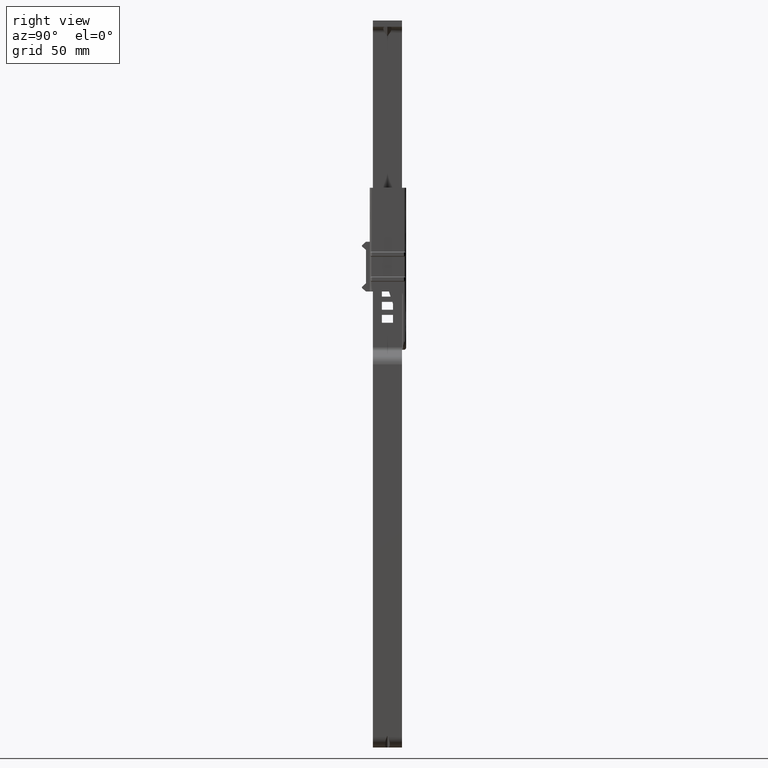
[diagram: clean part render]
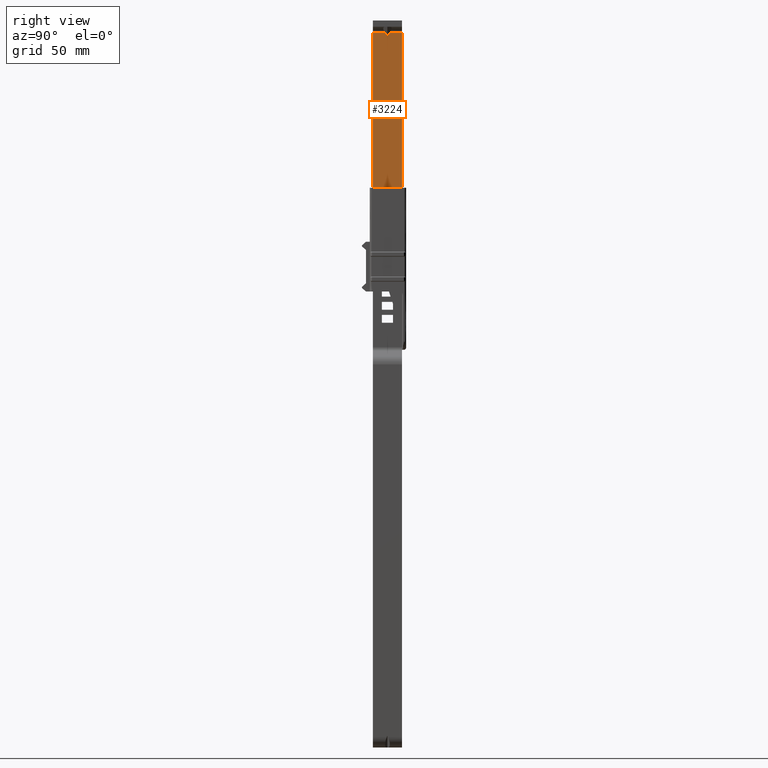
[diagram: same view with one face highlighted and labeled with its STEP entity id]
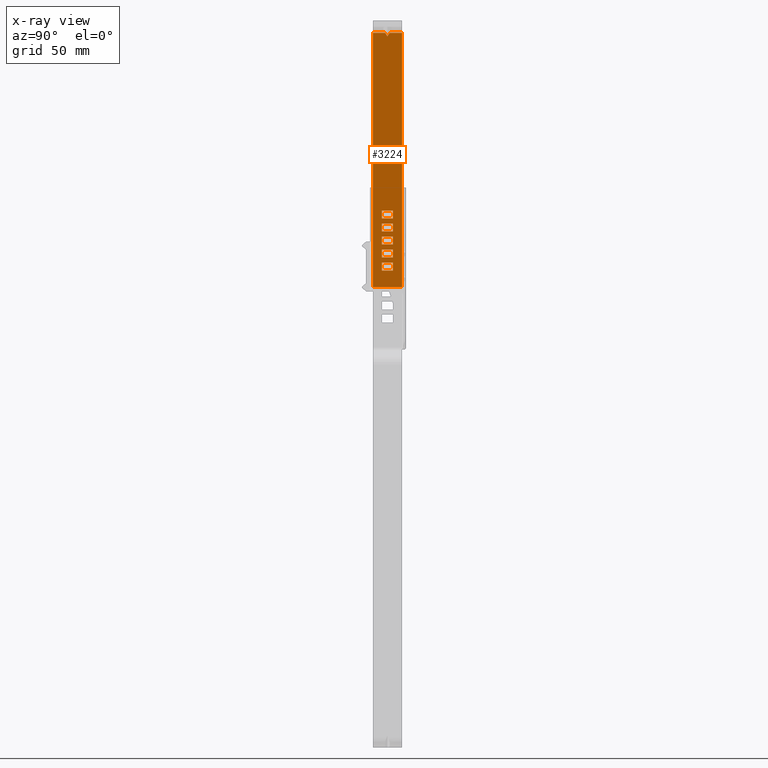
[diagram: x-ray of the same camera — body ghosted, the highlighted face saturated]
A machine part, right view. The second image highlights one B-rep face of the part: STEP entity #3224.
The next image is the same camera in x-ray: the body ghosted, the highlighted face saturated — about 0% of this face is hidden behind the body in this view.
In plain terms, the highlighted face is a freeform B-spline surface patch.
Its self-contained STEP definition (entity closure, byte-faithful):
#1826=CARTESIAN_POINT('',(-8.900000041257570,2.700000000000000,23.020002576783401));
#1827=VERTEX_POINT('',#1826);
#1828=CARTESIAN_POINT('',(-8.900000041257499,-2.699999999999925,23.020002576783401));
#1829=VERTEX_POINT('',#1828);
#1830=CARTESIAN_POINT('',(-8.900000041257570,2.700000000000000,23.020002576783401));
#1831=CARTESIAN_POINT('',(-8.900000041257499,-2.699999999999925,23.020002576783401));
#1832=QUASI_UNIFORM_CURVE('',1,(#1830,#1831),.UNSPECIFIED.,.F.,.U.);
#1833=EDGE_CURVE('',#1827,#1829,#1832,.T.);
#1862=CARTESIAN_POINT('',(-8.900000041257570,2.700000000000000,26.820002576783398));
#1863=VERTEX_POINT('',#1862);
#1864=CARTESIAN_POINT('',(-8.900000041257570,2.700000000000000,26.820002576783398));
#1865=CARTESIAN_POINT('',(-8.900000041257570,2.700000000000000,23.020002576783401));
#1866=QUASI_UNIFORM_CURVE('',1,(#1864,#1865),.UNSPECIFIED.,.F.,.U.);
#1867=EDGE_CURVE('',#1863,#1827,#1866,.T.);
#1890=CARTESIAN_POINT('',(-8.900000041257570,-2.700000000000000,26.820002576783398));
#1891=VERTEX_POINT('',#1890);
#1892=CARTESIAN_POINT('',(-8.900000041257570,-2.700000000000000,26.820002576783398));
#1893=CARTESIAN_POINT('',(-8.900000041257570,2.700000000000000,26.820002576783398));
#1894=QUASI_UNIFORM_CURVE('',1,(#1892,#1893),.UNSPECIFIED.,.F.,.U.);
#1895=EDGE_CURVE('',#1891,#1863,#1894,.T.);
#1918=CARTESIAN_POINT('',(-8.900000041257499,-2.699999999999925,23.020002576783401));
#1919=CARTESIAN_POINT('',(-8.900000041257570,-2.700000000000000,26.820002576783398));
#1920=QUASI_UNIFORM_CURVE('',1,(#1918,#1919),.UNSPECIFIED.,.F.,.U.);
#1921=EDGE_CURVE('',#1829,#1891,#1920,.T.);
#1938=CARTESIAN_POINT('',(-8.900000041257570,2.700000000000000,1.700002576783400));
#1939=VERTEX_POINT('',#1938);
#1940=CARTESIAN_POINT('',(-8.900000041257499,2.700000000000035,-2.099997423216601));
#1941=VERTEX_POINT('',#1940);
#1942=CARTESIAN_POINT('',(-8.900000041257570,2.700000000000000,1.700002576783400));
#1943=CARTESIAN_POINT('',(-8.900000041257499,2.700000000000035,-2.099997423216601));
#1944=QUASI_UNIFORM_CURVE('',1,(#1942,#1943),.UNSPECIFIED.,.F.,.U.);
#1945=EDGE_CURVE('',#1939,#1941,#1944,.T.);
#1974=CARTESIAN_POINT('',(-8.900000041257570,-2.700000000000000,1.700002576783400));
#1975=VERTEX_POINT('',#1974);
#1976=CARTESIAN_POINT('',(-8.900000041257570,-2.700000000000000,1.700002576783400));
#1977=CARTESIAN_POINT('',(-8.900000041257570,2.700000000000000,1.700002576783400));
#1978=QUASI_UNIFORM_CURVE('',1,(#1976,#1977),.UNSPECIFIED.,.F.,.U.);
#1979=EDGE_CURVE('',#1975,#1939,#1978,.T.);
#2002=CARTESIAN_POINT('',(-8.900000041257570,-2.700000000000000,-2.099997423216601));
#2003=VERTEX_POINT('',#2002);
#2004=CARTESIAN_POINT('',(-8.900000041257570,-2.700000000000000,-2.099997423216601));
#2005=CARTESIAN_POINT('',(-8.900000041257570,-2.700000000000000,1.700002576783400));
#2006=QUASI_UNIFORM_CURVE('',1,(#2004,#2005),.UNSPECIFIED.,.F.,.U.);
#2007=EDGE_CURVE('',#2003,#1975,#2006,.T.);
#2030=CARTESIAN_POINT('',(-8.900000041257499,2.700000000000035,-2.099997423216601));
#2031=CARTESIAN_POINT('',(-8.900000041257570,-2.700000000000000,-2.099997423216601));
#2032=QUASI_UNIFORM_CURVE('',1,(#2030,#2031),.UNSPECIFIED.,.F.,.U.);
#2033=EDGE_CURVE('',#1941,#2003,#2032,.T.);
#2050=CARTESIAN_POINT('',(-8.900000041257499,-2.699999999999925,4.180002576783404));
#2051=VERTEX_POINT('',#2050);
#2052=CARTESIAN_POINT('',(-8.900000041257570,2.700000000000000,4.180002576783400));
#2053=VERTEX_POINT('',#2052);
#2054=CARTESIAN_POINT('',(-8.900000041257499,-2.699999999999925,4.180002576783404));
#2055=CARTESIAN_POINT('',(-8.900000041257570,2.700000000000000,4.180002576783400));
#2056=QUASI_UNIFORM_CURVE('',1,(#2054,#2055),.UNSPECIFIED.,.F.,.U.);
#2057=EDGE_CURVE('',#2051,#2053,#2056,.T.);
#2086=CARTESIAN_POINT('',(-8.900000041257570,-2.700000000000000,7.980002576783400));
#2087=VERTEX_POINT('',#2086);
#2088=CARTESIAN_POINT('',(-8.900000041257570,-2.700000000000000,7.980002576783400));
#2089=CARTESIAN_POINT('',(-8.900000041257499,-2.699999999999925,4.180002576783404));
#2090=QUASI_UNIFORM_CURVE('',1,(#2088,#2089),.UNSPECIFIED.,.F.,.U.);
#2091=EDGE_CURVE('',#2087,#2051,#2090,.T.);
#2114=CARTESIAN_POINT('',(-8.900000041257570,2.700000000000000,7.980002576783400));
#2115=VERTEX_POINT('',#2114);
#2116=CARTESIAN_POINT('',(-8.900000041257570,2.700000000000000,7.980002576783400));
#2117=CARTESIAN_POINT('',(-8.900000041257570,-2.700000000000000,7.980002576783400));
#2118=QUASI_UNIFORM_CURVE('',1,(#2116,#2117),.UNSPECIFIED.,.F.,.U.);
#2119=EDGE_CURVE('',#2115,#2087,#2118,.T.);
#2142=CARTESIAN_POINT('',(-8.900000041257570,2.700000000000000,4.180002576783400));
#2143=CARTESIAN_POINT('',(-8.900000041257570,2.700000000000000,7.980002576783400));
#2144=QUASI_UNIFORM_CURVE('',1,(#2142,#2143),.UNSPECIFIED.,.F.,.U.);
#2145=EDGE_CURVE('',#2053,#2115,#2144,.T.);
#2162=CARTESIAN_POINT('',(-8.900000041257499,-2.699999999999925,10.460002576783401));
#2163=VERTEX_POINT('',#2162);
#2164=CARTESIAN_POINT('',(-8.900000041257570,2.700000000000000,10.460002576783401));
#2165=VERTEX_POINT('',#2164);
#2166=CARTESIAN_POINT('',(-8.900000041257499,-2.699999999999925,10.460002576783401));
#2167=CARTESIAN_POINT('',(-8.900000041257570,2.700000000000000,10.460002576783401));
#2168=QUASI_UNIFORM_CURVE('',1,(#2166,#2167),.UNSPECIFIED.,.F.,.U.);
#2169=EDGE_CURVE('',#2163,#2165,#2168,.T.);
#2198=CARTESIAN_POINT('',(-8.900000041257570,-2.700000000000000,14.260002576783400));
#2199=VERTEX_POINT('',#2198);
#2200=CARTESIAN_POINT('',(-8.900000041257570,-2.700000000000000,14.260002576783400));
#2201=CARTESIAN_POINT('',(-8.900000041257499,-2.699999999999925,10.460002576783401));
#2202=QUASI_UNIFORM_CURVE('',1,(#2200,#2201),.UNSPECIFIED.,.F.,.U.);
#2203=EDGE_CURVE('',#2199,#2163,#2202,.T.);
#2226=CARTESIAN_POINT('',(-8.900000041257570,2.700000000000000,14.260002576783400));
#2227=VERTEX_POINT('',#2226);
#2228=CARTESIAN_POINT('',(-8.900000041257570,2.700000000000000,14.260002576783400));
#2229=CARTESIAN_POINT('',(-8.900000041257570,-2.700000000000000,14.260002576783400));
#2230=QUASI_UNIFORM_CURVE('',1,(#2228,#2229),.UNSPECIFIED.,.F.,.U.);
#2231=EDGE_CURVE('',#2227,#2199,#2230,.T.);
#2254=CARTESIAN_POINT('',(-8.900000041257570,2.700000000000000,10.460002576783401));
#2255=CARTESIAN_POINT('',(-8.900000041257570,2.700000000000000,14.260002576783400));
#2256=QUASI_UNIFORM_CURVE('',1,(#2254,#2255),.UNSPECIFIED.,.F.,.U.);
#2257=EDGE_CURVE('',#2165,#2227,#2256,.T.);
#2274=CARTESIAN_POINT('',(-8.900000041257499,-2.699999999999925,16.740002576783400));
#2275=VERTEX_POINT('',#2274);
#2276=CARTESIAN_POINT('',(-8.900000041257570,2.700000000000000,16.740002576783400));
#2277=VERTEX_POINT('',#2276);
#2278=CARTESIAN_POINT('',(-8.900000041257499,-2.699999999999925,16.740002576783400));
#2279=CARTESIAN_POINT('',(-8.900000041257570,2.700000000000000,16.740002576783400));
#2280=QUASI_UNIFORM_CURVE('',1,(#2278,#2279),.UNSPECIFIED.,.F.,.U.);
#2281=EDGE_CURVE('',#2275,#2277,#2280,.T.);
#2310=CARTESIAN_POINT('',(-8.900000041257570,-2.700000000000000,20.540002576783401));
#2311=VERTEX_POINT('',#2310);
#2312=CARTESIAN_POINT('',(-8.900000041257570,-2.700000000000000,20.540002576783401));
#2313=CARTESIAN_POINT('',(-8.900000041257499,-2.699999999999925,16.740002576783400));
#2314=QUASI_UNIFORM_CURVE('',1,(#2312,#2313),.UNSPECIFIED.,.F.,.U.);
#2315=EDGE_CURVE('',#2311,#2275,#2314,.T.);
#2338=CARTESIAN_POINT('',(-8.900000041257570,2.700000000000000,20.540002576783401));
#2339=VERTEX_POINT('',#2338);
#2340=CARTESIAN_POINT('',(-8.900000041257570,2.700000000000000,20.540002576783401));
#2341=CARTESIAN_POINT('',(-8.900000041257570,-2.700000000000000,20.540002576783401));
#2342=QUASI_UNIFORM_CURVE('',1,(#2340,#2341),.UNSPECIFIED.,.F.,.U.);
#2343=EDGE_CURVE('',#2339,#2311,#2342,.T.);
#2366=CARTESIAN_POINT('',(-8.900000041257570,2.700000000000000,16.740002576783400));
#2367=CARTESIAN_POINT('',(-8.900000041257570,2.700000000000000,20.540002576783401));
#2368=QUASI_UNIFORM_CURVE('',1,(#2366,#2367),.UNSPECIFIED.,.F.,.U.);
#2369=EDGE_CURVE('',#2277,#2339,#2368,.T.);
#2472=CARTESIAN_POINT('',(-8.900000041257560,1.121320396819670,112.300008385721600));
#2473=VERTEX_POINT('',#2472);
#2496=CARTESIAN_POINT('',(-8.900000041257538,1.574754E-014,110.714221872773610));
#2497=VERTEX_POINT('',#2496);
#2503=CARTESIAN_POINT('',(-8.900000041257538,1.574754E-014,110.714221872773610));
#2504=CARTESIAN_POINT('',(-8.900000041257560,1.121320396819670,112.300008385721600));
#2505=QUASI_UNIFORM_CURVE('',1,(#2503,#2504),.UNSPECIFIED.,.F.,.U.);
#2506=EDGE_CURVE('',#2497,#2473,#2505,.T.);
#2523=CARTESIAN_POINT('',(-8.900000041257560,-1.121320396819670,112.300008385721600));
#2524=VERTEX_POINT('',#2523);
#2540=CARTESIAN_POINT('',(-8.900000041257538,1.574754E-014,110.714221872773610));
#2541=CARTESIAN_POINT('',(-8.900000041257560,-1.121320396819670,112.300008385721600));
#2542=QUASI_UNIFORM_CURVE('',1,(#2540,#2541),.UNSPECIFIED.,.F.,.U.);
#2543=EDGE_CURVE('',#2497,#2524,#2542,.T.);
#2809=CARTESIAN_POINT('',(-8.900000041257560,7.000000332482160,112.300008385721600));
#2810=VERTEX_POINT('',#2809);
#2824=CARTESIAN_POINT('',(-8.900000041257499,7.000000332482160,-10.199997423216599));
#2825=VERTEX_POINT('',#2824);
#2826=CARTESIAN_POINT('',(-8.900000041257499,7.000000332482160,-10.199997423216599));
#2827=CARTESIAN_POINT('',(-8.900000041257560,7.000000332482160,112.300008385721600));
#2828=QUASI_UNIFORM_CURVE('',1,(#2826,#2827),.UNSPECIFIED.,.F.,.U.);
#2829=EDGE_CURVE('',#2825,#2810,#2828,.T.);
#2868=CARTESIAN_POINT('',(-8.900000041257499,-7.000000332482160,-10.199997423216599));
#2869=VERTEX_POINT('',#2868);
#2881=CARTESIAN_POINT('',(-8.900000041257499,7.000000332482160,-10.199997423216599));
#2882=CARTESIAN_POINT('',(-8.900000041257499,-7.000000332482160,-10.199997423216599));
#2883=QUASI_UNIFORM_CURVE('',1,(#2881,#2882),.UNSPECIFIED.,.F.,.U.);
#2884=EDGE_CURVE('',#2825,#2869,#2883,.T.);
#2954=CARTESIAN_POINT('',(-8.900000041257560,7.000000332482160,112.300008385721600));
#2955=CARTESIAN_POINT('',(-8.900000041257560,1.121320396819670,112.300008385721600));
#2956=QUASI_UNIFORM_CURVE('',1,(#2954,#2955),.UNSPECIFIED.,.F.,.U.);
#2957=EDGE_CURVE('',#2810,#2473,#2956,.T.);
#2988=CARTESIAN_POINT('',(-8.900000041257560,-7.000000332482160,112.300008385721600));
#2989=VERTEX_POINT('',#2988);
#2990=CARTESIAN_POINT('',(-8.900000041257499,-7.000000332482160,-10.199997423216599));
#2991=CARTESIAN_POINT('',(-8.900000041257560,-7.000000332482160,112.300008385721600));
#2992=QUASI_UNIFORM_CURVE('',1,(#2990,#2991),.UNSPECIFIED.,.F.,.U.);
#2993=EDGE_CURVE('',#2869,#2989,#2992,.T.);
#3079=CARTESIAN_POINT('',(-8.900000041257560,-1.121320396819670,112.300008385721600));
#3080=CARTESIAN_POINT('',(-8.900000041257560,-7.000000332482160,112.300008385721600));
#3081=QUASI_UNIFORM_CURVE('',1,(#3079,#3080),.UNSPECIFIED.,.F.,.U.);
#3082=EDGE_CURVE('',#2524,#2989,#3081,.T.);
#3180=CARTESIAN_POINT('',(-8.900000041257499,-7.699300469984402,118.418885738334100));
#3181=CARTESIAN_POINT('',(-8.900000041257499,-7.699300469984402,-16.318875871064488));
#3182=CARTESIAN_POINT('',(-8.900000041257499,7.699300720323921,118.418885738334100));
#3183=CARTESIAN_POINT('',(-8.900000041257499,7.699300720323921,-16.318875871064488));
#3184=B_SPLINE_SURFACE_WITH_KNOTS('',1,1,((#3180,#3182),(#3181,#3183)),.UNSPECIFIED.,.F.,.F.,.U.,(2,2),(2,2),(0.0,134.737761609398600),(0.0,15.398601190308320),.UNSPECIFIED.);
#3185=ORIENTED_EDGE('',*,*,#2506,.F.);
#3186=ORIENTED_EDGE('',*,*,#2543,.T.);
#3187=ORIENTED_EDGE('',*,*,#3082,.T.);
#3188=ORIENTED_EDGE('',*,*,#2993,.F.);
#3189=ORIENTED_EDGE('',*,*,#2884,.F.);
#3190=ORIENTED_EDGE('',*,*,#2829,.T.);
#3191=ORIENTED_EDGE('',*,*,#2957,.T.);
#3192=EDGE_LOOP('',(#3185,#3186,#3187,#3188,#3189,#3190,#3191));
#3193=FACE_OUTER_BOUND('',#3192,.T.);
#3194=ORIENTED_EDGE('',*,*,#2145,.F.);
#3195=ORIENTED_EDGE('',*,*,#2057,.F.);
#3196=ORIENTED_EDGE('',*,*,#2091,.F.);
#3197=ORIENTED_EDGE('',*,*,#2119,.F.);
#3198=EDGE_LOOP('',(#3194,#3195,#3196,#3197));
#3199=FACE_BOUND('',#3198,.T.);
#3200=ORIENTED_EDGE('',*,*,#2257,.F.);
#3201=ORIENTED_EDGE('',*,*,#2169,.F.);
#3202=ORIENTED_EDGE('',*,*,#2203,.F.);
#3203=ORIENTED_EDGE('',*,*,#2231,.F.);
#3204=EDGE_LOOP('',(#3200,#3201,#3202,#3203));
#3205=FACE_BOUND('',#3204,.T.);
#3206=ORIENTED_EDGE('',*,*,#2369,.F.);
#3207=ORIENTED_EDGE('',*,*,#2281,.F.);
#3208=ORIENTED_EDGE('',*,*,#2315,.F.);
#3209=ORIENTED_EDGE('',*,*,#2343,.F.);
#3210=EDGE_LOOP('',(#3206,#3207,#3208,#3209));
#3211=FACE_BOUND('',#3210,.T.);
#3212=ORIENTED_EDGE('',*,*,#1945,.T.);
#3213=ORIENTED_EDGE('',*,*,#2033,.T.);
#3214=ORIENTED_EDGE('',*,*,#2007,.T.);
#3215=ORIENTED_EDGE('',*,*,#1979,.T.);
#3216=EDGE_LOOP('',(#3212,#3213,#3214,#3215));
#3217=FACE_BOUND('',#3216,.T.);
#3218=ORIENTED_EDGE('',*,*,#1833,.T.);
#3219=ORIENTED_EDGE('',*,*,#1921,.T.);
#3220=ORIENTED_EDGE('',*,*,#1895,.T.);
#3221=ORIENTED_EDGE('',*,*,#1867,.T.);
#3222=EDGE_LOOP('',(#3218,#3219,#3220,#3221));
#3223=FACE_BOUND('',#3222,.T.);
#3224=ADVANCED_FACE('',(#3193,#3199,#3205,#3211,#3217,#3223),#3184,.T.);